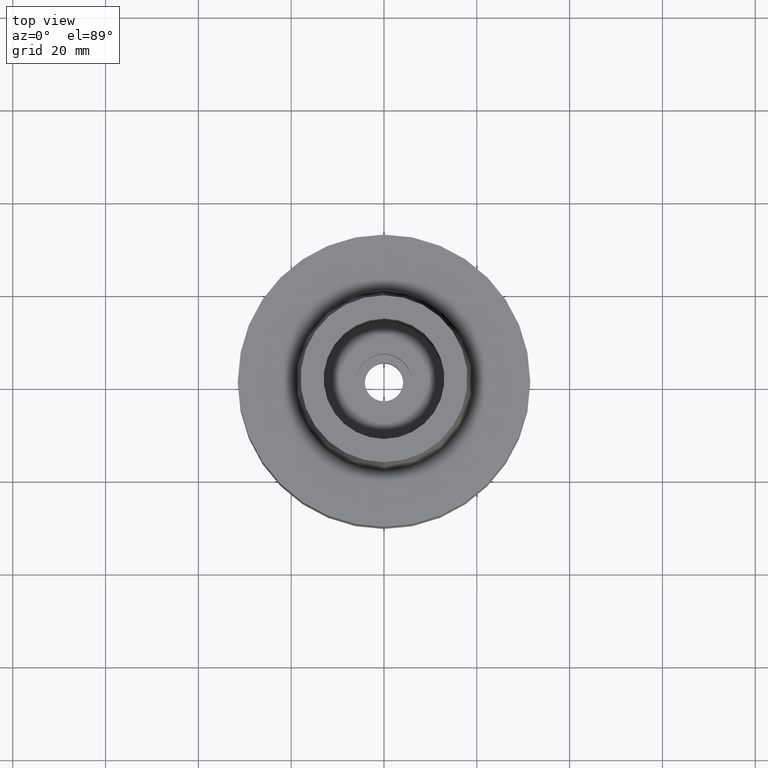
[diagram: clean part render]
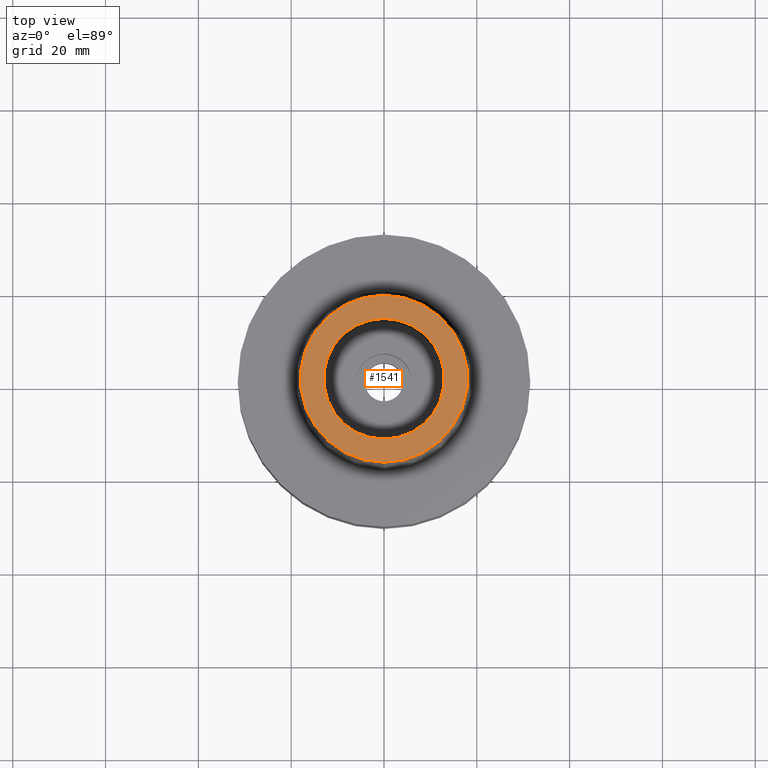
[diagram: same view with one face highlighted and labeled with its STEP entity id]
A machine part, top view. The second image highlights one B-rep face of the part: STEP entity #1541.
In plain terms, the highlighted planar face has unit normal (0, 0, 1).
Its self-contained STEP definition (entity closure, byte-faithful):
#38 = CARTESIAN_POINT ( 'NONE',  ( 0.0000000000000000000, 18.00000182882000033, 25.00000000000000000 ) ) ;
#42 = CIRCLE ( 'NONE', #419, 13.00000000000000000 ) ;
#62 = ORIENTED_EDGE ( 'NONE', *, *, #818, .F. ) ;
#111 = AXIS2_PLACEMENT_3D ( 'NONE', #1053, #656, #2804 ) ;
#238 = VERTEX_POINT ( 'NONE', #2196 ) ;
#419 = AXIS2_PLACEMENT_3D ( 'NONE', #1229, #2782, #1675 ) ;
#435 = CARTESIAN_POINT ( 'NONE',  ( 0.0000000000000000000, 13.00000000000000000, 25.00000000000000000 ) ) ;
#464 = EDGE_CURVE ( 'NONE', #2733, #238, #2508, .T. ) ;
#558 = ORIENTED_EDGE ( 'NONE', *, *, #2441, .F. ) ;
#596 = FACE_OUTER_BOUND ( 'NONE', #1524, .T. ) ;
#656 = DIRECTION ( 'NONE',  ( 0.0000000000000000000, 0.0000000000000000000, 1.000000000000000000 ) ) ;
#818 = EDGE_CURVE ( 'NONE', #2246, #2075, #1970, .T. ) ;
#889 = CARTESIAN_POINT ( 'NONE',  ( 0.0000000000000000000, 0.0000000000000000000, 25.00000000000000000 ) ) ;
#934 = ORIENTED_EDGE ( 'NONE', *, *, #464, .F. ) ;
#1001 = AXIS2_PLACEMENT_3D ( 'NONE', #1484, #1075, #2138 ) ;
#1053 = CARTESIAN_POINT ( 'NONE',  ( 0.0000000000000000000, 0.0000000000000000000, 25.00000000000000000 ) ) ;
#1075 = DIRECTION ( 'NONE',  ( 0.0000000000000000000, 0.0000000000000000000, 1.000000000000000000 ) ) ;
#1229 = CARTESIAN_POINT ( 'NONE',  ( 0.0000000000000000000, 0.0000000000000000000, 25.00000000000000000 ) ) ;
#1286 = EDGE_LOOP ( 'NONE', ( #934, #558 ) ) ;
#1484 = CARTESIAN_POINT ( 'NONE',  ( 0.0000000000000000000, 0.0000000000000000000, 25.00000000000000000 ) ) ;
#1524 = EDGE_LOOP ( 'NONE', ( #62, #1528 ) ) ;
#1528 = ORIENTED_EDGE ( 'NONE', *, *, #2752, .F. ) ;
#1541 = ADVANCED_FACE ( 'NONE', ( #596, #2630 ), #1928, .T. ) ;
#1675 = DIRECTION ( 'NONE',  ( 0.0000000000000000000, -1.000000000000000000, 0.0000000000000000000 ) ) ;
#1711 = DIRECTION ( 'NONE',  ( 0.0000000000000000000, 0.0000000000000000000, -1.000000000000000000 ) ) ;
#1762 = DIRECTION ( 'NONE',  ( 0.0000000000000000000, 0.0000000000000000000, -1.000000000000000000 ) ) ;
#1786 = AXIS2_PLACEMENT_3D ( 'NONE', #1871, #1711, #2102 ) ;
#1862 = AXIS2_PLACEMENT_3D ( 'NONE', #889, #1762, #1976 ) ;
#1871 = CARTESIAN_POINT ( 'NONE',  ( 0.0000000000000000000, 0.0000000000000000000, 25.00000000000000000 ) ) ;
#1928 = PLANE ( 'NONE',  #111 ) ;
#1970 = CIRCLE ( 'NONE', #1786, 18.00000182882000033 ) ;
#1976 = DIRECTION ( 'NONE',  ( 0.0000000000000000000, -1.000000000000000000, 0.0000000000000000000 ) ) ;
#2075 = VERTEX_POINT ( 'NONE', #2202 ) ;
#2102 = DIRECTION ( 'NONE',  ( 0.0000000000000000000, 1.000000000000000000, 0.0000000000000000000 ) ) ;
#2138 = DIRECTION ( 'NONE',  ( 0.0000000000000000000, 1.000000000000000000, 0.0000000000000000000 ) ) ;
#2196 = CARTESIAN_POINT ( 'NONE',  ( 0.0000000000000000000, -13.00000000000000000, 25.00000000000000000 ) ) ;
#2202 = CARTESIAN_POINT ( 'NONE',  ( 0.0000000000000000000, -18.00000182882000033, 25.00000000000000000 ) ) ;
#2246 = VERTEX_POINT ( 'NONE', #38 ) ;
#2267 = CIRCLE ( 'NONE', #1862, 18.00000182882000033 ) ;
#2441 = EDGE_CURVE ( 'NONE', #238, #2733, #42, .T. ) ;
#2508 = CIRCLE ( 'NONE', #1001, 13.00000000000000000 ) ;
#2630 = FACE_BOUND ( 'NONE', #1286, .T. ) ;
#2733 = VERTEX_POINT ( 'NONE', #435 ) ;
#2752 = EDGE_CURVE ( 'NONE', #2075, #2246, #2267, .T. ) ;
#2782 = DIRECTION ( 'NONE',  ( 0.0000000000000000000, 0.0000000000000000000, 1.000000000000000000 ) ) ;
#2804 = DIRECTION ( 'NONE',  ( 1.000000000000000000, 0.0000000000000000000, 0.0000000000000000000 ) ) ;